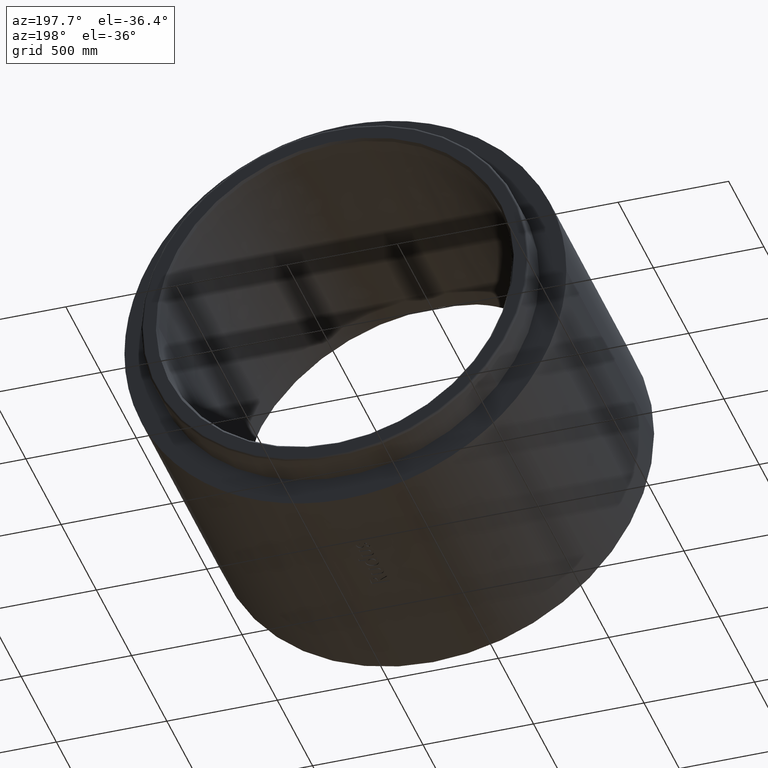
[diagram: clean part render]
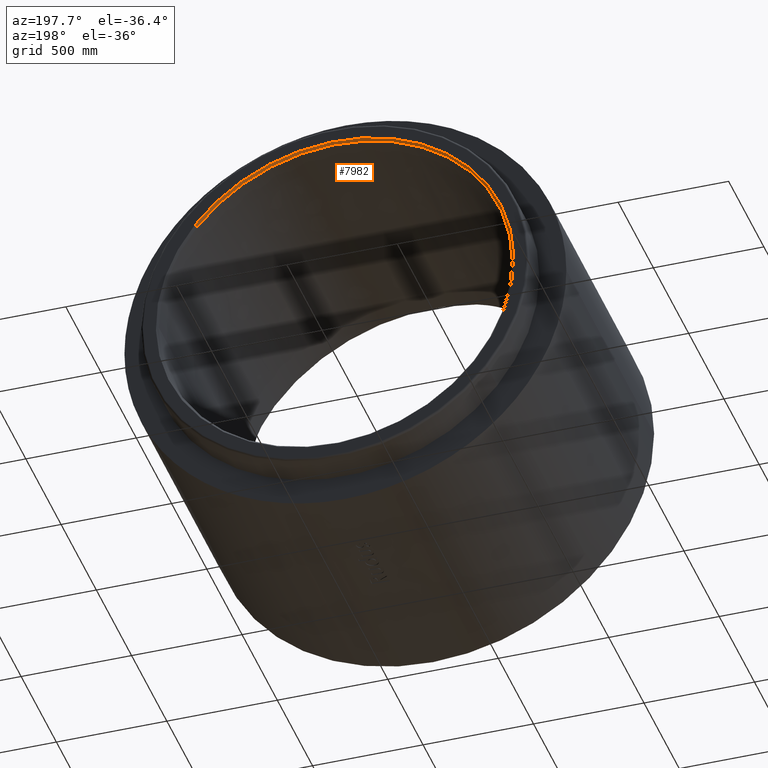
[diagram: same view with one face highlighted and labeled with its STEP entity id]
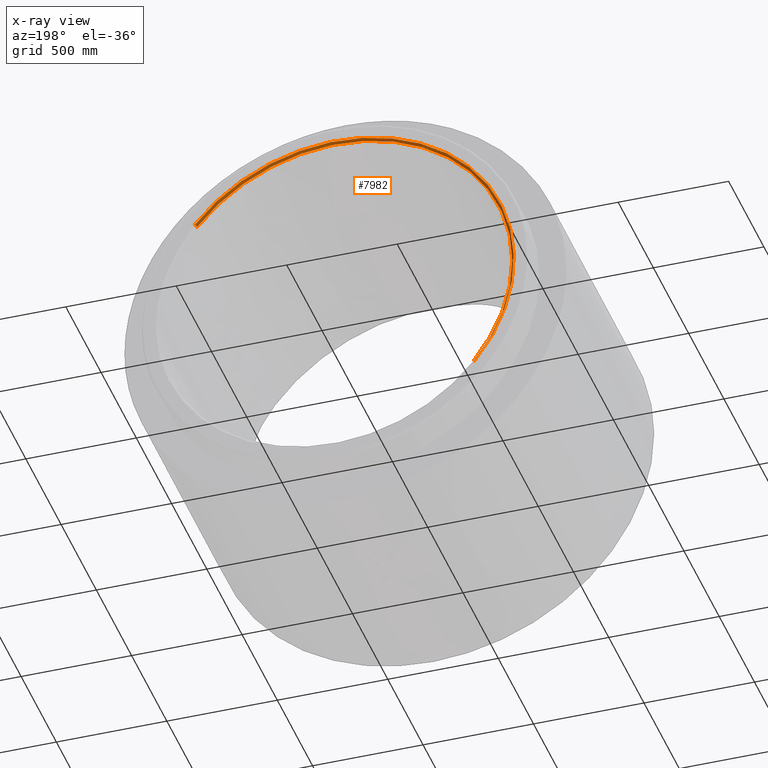
[diagram: x-ray of the same camera — body ghosted, the highlighted face saturated]
A machine part, auxiliary view. The second image highlights one B-rep face of the part: STEP entity #7982.
The next image is the same camera in x-ray: the body ghosted, the highlighted face saturated — about 0% of this face is hidden behind the body in this view.
In plain terms, the highlighted conical surface has half-angle 45 deg.
Its self-contained STEP definition (entity closure, byte-faithful):
#102 = DIRECTION ( 'NONE',  ( 0.7822983126862212977, -0.6229039652854132525, 0.0000000000000000000 ) ) ;
#456 = CARTESIAN_POINT ( 'NONE',  ( -633.6616332758392218, 504.5522118811849168, 1250.000000000000000 ) ) ;
#1174 = ORIENTED_EDGE ( 'NONE', *, *, #9149, .T. ) ;
#1830 = DIRECTION ( 'NONE',  ( -0.5531684418112210455, 0.4404596178813055540, 0.7071067811865474617 ) ) ;
#1878 = EDGE_CURVE ( 'NONE', #20135, #16434, #14957, .T. ) ;
#2072 = DIRECTION ( 'NONE',  ( -0.7822983126862211867, 0.6229039652854131415, 0.0000000000000000000 ) ) ;
#2233 = CARTESIAN_POINT ( 'NONE',  ( 633.6616332758393355, -504.5522118811848031, 1250.000000000000000 ) ) ;
#2518 = DIRECTION ( 'NONE',  ( 0.0000000000000000000, 0.0000000000000000000, -1.000000000000000000 ) ) ;
#2553 = CIRCLE ( 'NONE', #18076, 800.0000000000003411 ) ;
#2885 = VECTOR ( 'NONE', #1830, 1000.000000000000000 ) ;
#2912 = ORIENTED_EDGE ( 'NONE', *, *, #14226, .T. ) ;
#3117 = DIRECTION ( 'NONE',  ( 0.0000000000000000000, 0.0000000000000000000, -1.000000000000000000 ) ) ;
#4033 = AXIS2_PLACEMENT_3D ( 'NONE', #18052, #16090, #21642 ) ;
#4385 = CONICAL_SURFACE ( 'NONE', #9546, 810.0000000000001137, 0.7853981633974482790 ) ;
#4527 = FACE_OUTER_BOUND ( 'NONE', #14200, .T. ) ;
#4555 = CARTESIAN_POINT ( 'NONE',  ( 633.6616332758393355, -504.5522118811848031, 1250.000000000000000 ) ) ;
#4742 = AXIS2_PLACEMENT_3D ( 'NONE', #13040, #2518, #2072 ) ;
#4858 = EDGE_CURVE ( 'NONE', #16434, #14056, #13628, .T. ) ;
#6518 = DIRECTION ( 'NONE',  ( 0.5531684418112212676, -0.4404596178813054985, 0.7071067811865474617 ) ) ;
#7472 = ORIENTED_EDGE ( 'NONE', *, *, #4858, .F. ) ;
#7808 = VERTEX_POINT ( 'NONE', #16781 ) ;
#7982 = ADVANCED_FACE ( 'NONE', ( #4527 ), #4385, .F. ) ;
#8192 = ORIENTED_EDGE ( 'NONE', *, *, #16079, .T. ) ;
#9149 = EDGE_CURVE ( 'NONE', #7808, #17069, #2553, .T. ) ;
#9212 = LINE ( 'NONE', #22879, #2885 ) ;
#9546 = AXIS2_PLACEMENT_3D ( 'NONE', #17133, #11818, #102 ) ;
#10177 = DIRECTION ( 'NONE',  ( -0.7822983126862211867, 0.6229039652854131415, 0.0000000000000000000 ) ) ;
#10407 = CARTESIAN_POINT ( 'NONE',  ( 0.0000000000000000000, 0.0000000000000000000, 1240.000000000000000 ) ) ;
#11818 = DIRECTION ( 'NONE',  ( 0.0000000000000000000, 0.0000000000000000000, 1.000000000000000000 ) ) ;
#13040 = CARTESIAN_POINT ( 'NONE',  ( 0.0000000000000000000, 0.0000000000000000000, 1240.000000000000000 ) ) ;
#13628 = CIRCLE ( 'NONE', #4033, 810.0000000000001137 ) ;
#14044 = CARTESIAN_POINT ( 'NONE',  ( 625.8386501489770808, -498.3231722283306908, 1240.000000000000000 ) ) ;
#14056 = VERTEX_POINT ( 'NONE', #456 ) ;
#14200 = EDGE_LOOP ( 'NONE', ( #1174, #8192, #7472, #21522, #2912 ) ) ;
#14226 = EDGE_CURVE ( 'NONE', #20135, #7808, #22467, .T. ) ;
#14957 = LINE ( 'NONE', #4555, #18397 ) ;
#16079 = EDGE_CURVE ( 'NONE', #17069, #14056, #9212, .T. ) ;
#16090 = DIRECTION ( 'NONE',  ( 0.0000000000000000000, 0.0000000000000000000, -1.000000000000000000 ) ) ;
#16434 = VERTEX_POINT ( 'NONE', #2233 ) ;
#16781 = CARTESIAN_POINT ( 'NONE',  ( -800.0000000000000000, 0.0000000000000000000, 1240.000000000000000 ) ) ;
#17069 = VERTEX_POINT ( 'NONE', #21783 ) ;
#17133 = CARTESIAN_POINT ( 'NONE',  ( 0.0000000000000000000, 0.0000000000000000000, 1250.000000000000000 ) ) ;
#18052 = CARTESIAN_POINT ( 'NONE',  ( 0.0000000000000000000, 0.0000000000000000000, 1250.000000000000000 ) ) ;
#18076 = AXIS2_PLACEMENT_3D ( 'NONE', #10407, #3117, #10177 ) ;
#18397 = VECTOR ( 'NONE', #6518, 1000.000000000000000 ) ;
#20135 = VERTEX_POINT ( 'NONE', #14044 ) ;
#21522 = ORIENTED_EDGE ( 'NONE', *, *, #1878, .F. ) ;
#21642 = DIRECTION ( 'NONE',  ( -0.7822983126862212977, 0.6229039652854132525, 0.0000000000000000000 ) ) ;
#21783 = CARTESIAN_POINT ( 'NONE',  ( -625.8386501489769671, 498.3231722283308045, 1240.000000000000000 ) ) ;
#22467 = CIRCLE ( 'NONE', #4742, 800.0000000000003411 ) ;
#22879 = CARTESIAN_POINT ( 'NONE',  ( -633.6616332758392218, 504.5522118811849168, 1250.000000000000000 ) ) ;